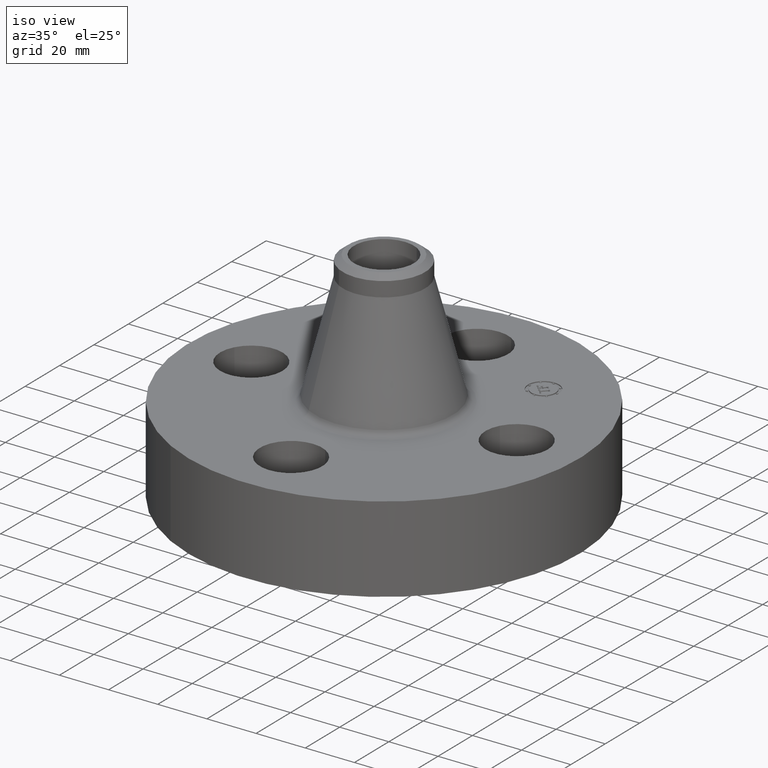
[diagram: clean part render]
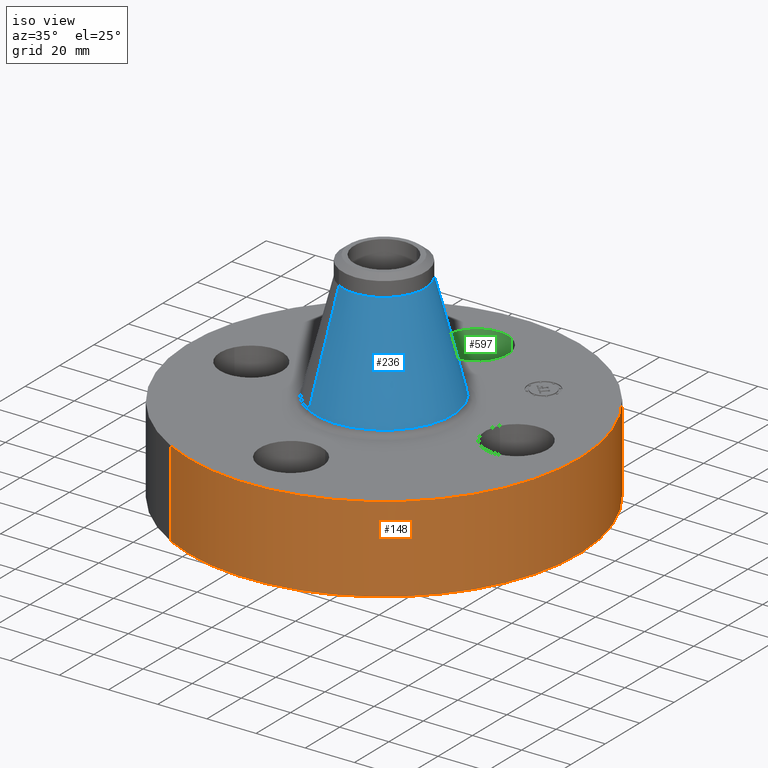
[diagram: same view with three faces highlighted in distinct colors, each labeled with its STEP entity id]
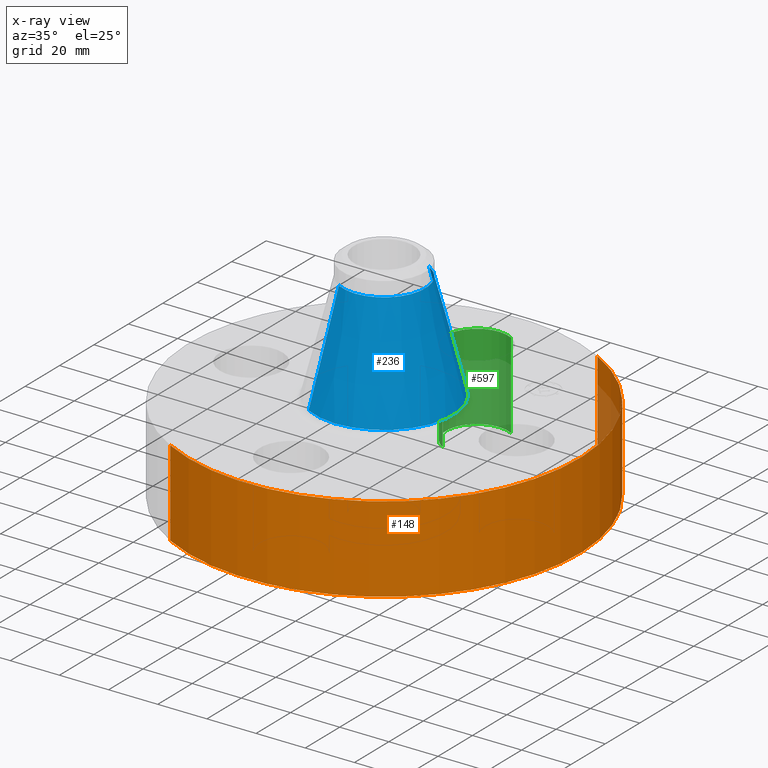
[diagram: x-ray of the same camera — body ghosted, the three highlighted faces saturated]
A machine part, iso view with three faces highlighted in distinct colors.
The next image is the same camera in x-ray (body ghosted, the three faces saturated) — at least one of them is partly hidden behind the body in this view.
Their STEP definitions:

[orange] entity #148 — the highlighted cylindrical surface (partial cylindrical patch) has radius 79.375 mm, axis along (0, 0, -1).
#95=AXIS2_PLACEMENT_3D('Cylinder Axis2P3D',#92,#93,#94) ;
#134=AXIS2_PLACEMENT_3D('Circle Axis2P3D',#132,#133,$) ;
#139=AXIS2_PLACEMENT_3D('Circle Axis2P3D',#137,#138,$) ;
#92=CARTESIAN_POINT('Axis2P3D Location',(0.,0.,1.62500000001)) ;
#101=CARTESIAN_POINT('Vertex',(-1.49820480814,-2.74244550592,2.79741234551E-016)) ;
#103=CARTESIAN_POINT('Vertex',(1.49820480814,2.74244550592,2.79741234551E-016)) ;
#106=CARTESIAN_POINT('Line Origine',(-1.49820480814,-2.74244550592,0.690000000003)) ;
#110=CARTESIAN_POINT('Vertex',(-1.49820480814,-2.74244550592,1.38000000001)) ;
#117=CARTESIAN_POINT('Vertex',(1.49820480814,2.74244550592,1.38000000001)) ;
#120=CARTESIAN_POINT('Line Origine',(1.49820480814,2.74244550592,0.690000000003)) ;
#132=CARTESIAN_POINT('Axis2P3D Location',(0.,0.,2.79741234551E-016)) ;
#137=CARTESIAN_POINT('Axis2P3D Location',(0.,0.,1.38000000001)) ;
#93=DIRECTION('Axis2P3D Direction',(0.,0.,-0.0393700787402)) ;
#94=DIRECTION('Axis2P3D XDirection',(0.0188750212049,0.0345504945626,0.)) ;
#107=DIRECTION('Vector Direction',(0.,0.,-0.0393700787402)) ;
#121=DIRECTION('Vector Direction',(0.,0.,-0.0393700787402)) ;
#133=DIRECTION('Axis2P3D Direction',(0.,0.,-0.0393700787402)) ;
#138=DIRECTION('Axis2P3D Direction',(0.,0.,-0.0393700787402)) ;
#108=VECTOR('Line Direction',#107,0.0393700787402) ;
#122=VECTOR('Line Direction',#121,0.0393700787402) ;
#143=ORIENTED_EDGE('',*,*,#136,.F.) ;
#144=ORIENTED_EDGE('',*,*,#124,.T.) ;
#145=ORIENTED_EDGE('',*,*,#141,.T.) ;
#146=ORIENTED_EDGE('',*,*,#112,.F.) ;
#148=ADVANCED_FACE('PartBody',(#147),#96,.T.) ;
#135=CIRCLE('generated circle',#134,3.12500000001) ;
#140=CIRCLE('generated circle',#139,3.12500000001) ;
#96=CYLINDRICAL_SURFACE('generated cylinder',#95,3.12500000001) ;
#112=EDGE_CURVE('',#102,#111,#109,.F.) ;
#124=EDGE_CURVE('',#104,#118,#123,.F.) ;
#136=EDGE_CURVE('',#104,#102,#135,.T.) ;
#141=EDGE_CURVE('',#118,#111,#140,.T.) ;
#142=EDGE_LOOP('',(#143,#144,#145,#146)) ;
#147=FACE_OUTER_BOUND('',#142,.T.) ;
#109=LINE('Line',#106,#108) ;
#123=LINE('Line',#120,#122) ;
#102=VERTEX_POINT('',#101) ;
#104=VERTEX_POINT('',#103) ;
#111=VERTEX_POINT('',#110) ;
#118=VERTEX_POINT('',#117) ;

[blue] entity #236 — the highlighted conical surface has half-angle 14.447 deg.
#172=AXIS2_PLACEMENT_3D('Circle Axis2P3D',#170,#171,$) ;
#209=AXIS2_PLACEMENT_3D('Cone Axis2P3D',#206,#207,#208) ;
#220=AXIS2_PLACEMENT_3D('Circle Axis2P3D',#218,#219,$) ;
#167=CARTESIAN_POINT('Vertex',(0.528229843363,0.966918242518,1.47006221555)) ;
#170=CARTESIAN_POINT('Axis2P3D Location',(0.,0.,1.47006221555)) ;
#174=CARTESIAN_POINT('Vertex',(-0.528229843363,-0.966918242518,1.47006221555)) ;
#206=CARTESIAN_POINT('Axis2P3D Location',(0.,0.,3.18492912713)) ;
#211=CARTESIAN_POINT('Line Origine',(0.422325349421,0.773061366684,2.32749567134)) ;
#215=CARTESIAN_POINT('Vertex',(0.31642085548,0.57920449085,3.18492912713)) ;
#218=CARTESIAN_POINT('Axis2P3D Location',(0.,0.,3.18492912713)) ;
#222=CARTESIAN_POINT('Vertex',(-0.31642085548,-0.57920449085,3.18492912713)) ;
#225=CARTESIAN_POINT('Line Origine',(-0.422325349421,-0.773061366684,2.32749567134)) ;
#171=DIRECTION('Axis2P3D Direction',(0.,0.,-0.0393700787402)) ;
#207=DIRECTION('Axis2P3D Direction',(0.,0.,-0.0393700787402)) ;
#208=DIRECTION('Axis2P3D XDirection',(-0.0188750212049,-0.0345504945626,0.)) ;
#212=DIRECTION('Vector Direction',(0.00470896930408,0.00861971049304,-0.0381251793322)) ;
#219=DIRECTION('Axis2P3D Direction',(0.,0.,-0.0393700787402)) ;
#226=DIRECTION('Vector Direction',(-0.00470896930408,-0.00861971049304,-0.0381251793322)) ;
#213=VECTOR('Line Direction',#212,0.0393700787402) ;
#227=VECTOR('Line Direction',#226,0.0393700787402) ;
#231=ORIENTED_EDGE('',*,*,#176,.F.) ;
#232=ORIENTED_EDGE('',*,*,#217,.T.) ;
#233=ORIENTED_EDGE('',*,*,#224,.T.) ;
#234=ORIENTED_EDGE('',*,*,#229,.F.) ;
#236=ADVANCED_FACE('PartBody',(#235),#210,.T.) ;
#173=CIRCLE('generated circle',#172,1.10179746557) ;
#221=CIRCLE('generated circle',#220,0.660000000003) ;
#210=CONICAL_SURFACE('Cone',#209,0.660000000003,0.252144826006) ;
#176=EDGE_CURVE('',#168,#175,#173,.T.) ;
#217=EDGE_CURVE('',#168,#216,#214,.F.) ;
#224=EDGE_CURVE('',#216,#223,#221,.T.) ;
#229=EDGE_CURVE('',#175,#223,#228,.F.) ;
#230=EDGE_LOOP('',(#231,#232,#233,#234)) ;
#235=FACE_OUTER_BOUND('',#230,.T.) ;
#214=LINE('Line',#211,#213) ;
#228=LINE('Line',#225,#227) ;
#168=VERTEX_POINT('',#167) ;
#175=VERTEX_POINT('',#174) ;
#216=VERTEX_POINT('',#215) ;
#223=VERTEX_POINT('',#222) ;

[green] entity #597 — the highlighted cylindrical surface (partial cylindrical patch) has radius 12.7 mm, axis along (0, 0, -1).
#550=AXIS2_PLACEMENT_3D('Circle Axis2P3D',#548,#549,$) ;
#570=AXIS2_PLACEMENT_3D('Cylinder Axis2P3D',#567,#568,#569) ;
#588=AXIS2_PLACEMENT_3D('Circle Axis2P3D',#586,#587,$) ;
#548=CARTESIAN_POINT('Axis2P3D Location',(-2.79741234551E-016,2.12500000001,0.)) ;
#552=CARTESIAN_POINT('Vertex',(-0.239712769303,1.68620871906,0.)) ;
#554=CARTESIAN_POINT('Vertex',(0.239712769303,2.56379128096,0.)) ;
#567=CARTESIAN_POINT('Axis2P3D Location',(-3.9035616723E-016,2.12500000001,1.37606299213)) ;
#572=CARTESIAN_POINT('Line Origine',(-0.239712769303,1.68620871906,0.690000000003)) ;
#576=CARTESIAN_POINT('Vertex',(-0.239712769303,1.68620871906,1.38000000001)) ;
#579=CARTESIAN_POINT('Line Origine',(0.239712769303,2.56379128096,0.690000000003)) ;
#583=CARTESIAN_POINT('Vertex',(0.239712769303,2.56379128096,1.38000000001)) ;
#586=CARTESIAN_POINT('Axis2P3D Location',(-3.9035616723E-016,2.12500000001,1.38000000001)) ;
#549=DIRECTION('Axis2P3D Direction',(0.,0.,-0.0393700787402)) ;
#568=DIRECTION('Axis2P3D Direction',(0.,0.,-0.0393700787402)) ;
#569=DIRECTION('Axis2P3D XDirection',(0.0188750212049,0.0345504945626,0.)) ;
#573=DIRECTION('Vector Direction',(0.,0.,-0.0393700787402)) ;
#580=DIRECTION('Vector Direction',(0.,0.,-0.0393700787402)) ;
#587=DIRECTION('Axis2P3D Direction',(0.,0.,-0.0393700787402)) ;
#574=VECTOR('Line Direction',#573,0.0393700787402) ;
#581=VECTOR('Line Direction',#580,0.0393700787402) ;
#592=ORIENTED_EDGE('',*,*,#578,.F.) ;
#593=ORIENTED_EDGE('',*,*,#556,.T.) ;
#594=ORIENTED_EDGE('',*,*,#585,.T.) ;
#595=ORIENTED_EDGE('',*,*,#590,.F.) ;
#597=ADVANCED_FACE('PartBody',(#596),#571,.F.) ;
#551=CIRCLE('generated circle',#550,0.500000000002) ;
#589=CIRCLE('generated circle',#588,0.500000000002) ;
#571=CYLINDRICAL_SURFACE('generated cylinder',#570,0.500000000002) ;
#556=EDGE_CURVE('',#553,#555,#551,.T.) ;
#578=EDGE_CURVE('',#553,#577,#575,.F.) ;
#585=EDGE_CURVE('',#555,#584,#582,.F.) ;
#590=EDGE_CURVE('',#577,#584,#589,.T.) ;
#591=EDGE_LOOP('',(#592,#593,#594,#595)) ;
#596=FACE_OUTER_BOUND('',#591,.T.) ;
#575=LINE('Line',#572,#574) ;
#582=LINE('Line',#579,#581) ;
#553=VERTEX_POINT('',#552) ;
#555=VERTEX_POINT('',#554) ;
#577=VERTEX_POINT('',#576) ;
#584=VERTEX_POINT('',#583) ;